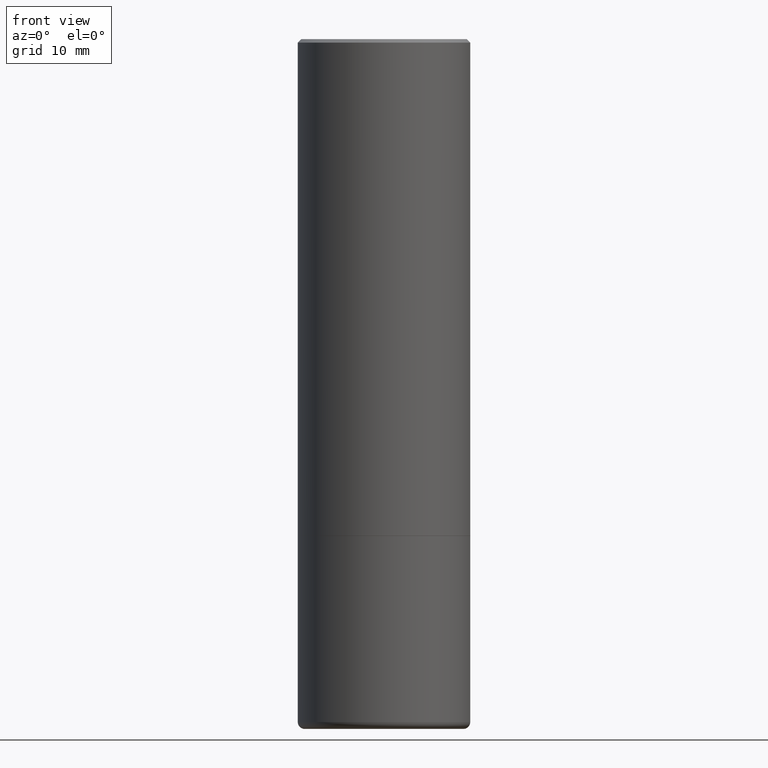
[diagram: clean part render]
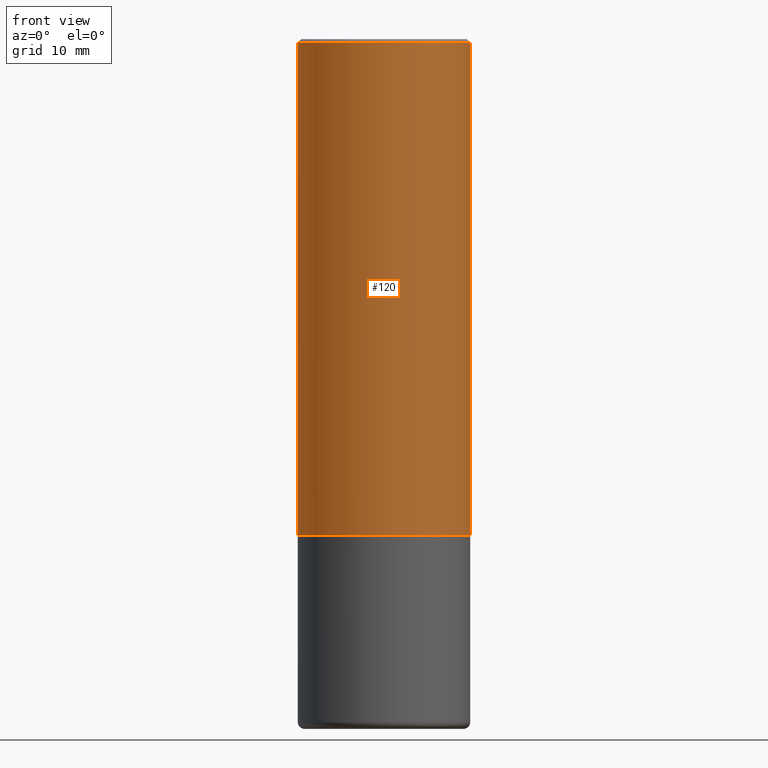
[diagram: same view with one face highlighted and labeled with its STEP entity id]
A machine part, front view. The second image highlights one B-rep face of the part: STEP entity #120.
In plain terms, the highlighted cylindrical surface (partial cylindrical patch) has radius 12.5006 mm, axis along (-0, 0, 1).
Its self-contained STEP definition (entity closure, byte-faithful):
#4 = EDGE_LOOP ( 'NONE', ( #301, #158, #31, #171 ) ) ;
#31 = ORIENTED_EDGE ( 'NONE', *, *, #246, .T. ) ;
#46 = DIRECTION ( 'NONE',  ( 1.000000000000000000, -6.982962677686265922E-15, 4.876176775795935793E-29 ) ) ;
#49 = EDGE_CURVE ( 'NONE', #362, #149, #179, .T. ) ;
#52 = DIRECTION ( 'NONE',  ( -2.445468806185136877E-29, 3.491481338843145188E-15, 1.000000000000000000 ) ) ;
#73 = CIRCLE ( 'NONE', #102, 0.4921499999999999764 ) ;
#77 = DIRECTION ( 'NONE',  ( -2.445468806185136877E-29, 3.491481338843145188E-15, 1.000000000000000000 ) ) ;
#94 = EDGE_CURVE ( 'NONE', #362, #298, #402, .T. ) ;
#95 = DIRECTION ( 'NONE',  ( 1.000000000000000000, -6.982962677686265922E-15, 0.000000000000000000 ) ) ;
#102 = AXIS2_PLACEMENT_3D ( 'NONE', #256, #217, #418 ) ;
#115 = DIRECTION ( 'NONE',  ( -2.445468806185136597E-29, 3.491481338843145583E-15, 1.000000000000000000 ) ) ;
#120 = ADVANCED_FACE ( 'NONE', ( #240 ), #347, .T. ) ;
#137 = AXIS2_PLACEMENT_3D ( 'NONE', #237, #366, #95 ) ;
#149 = VERTEX_POINT ( 'NONE', #369 ) ;
#158 = ORIENTED_EDGE ( 'NONE', *, *, #49, .T. ) ;
#160 = VECTOR ( 'NONE', #77, 39.37007874015748143 ) ;
#171 = ORIENTED_EDGE ( 'NONE', *, *, #321, .F. ) ;
#179 = CIRCLE ( 'NONE', #137, 0.4921500000000003094 ) ;
#189 = CARTESIAN_POINT ( 'NONE',  ( -0.4921500000000003094, -1.484709500218062761E-15, -2.833600000000000119 ) ) ;
#209 = CARTESIAN_POINT ( 'NONE',  ( -0.4921500000000000874, 3.496936074043333686E-15, -2.420853904668952350E-29 ) ) ;
#212 = VECTOR ( 'NONE', #52, 39.37007874015748143 ) ;
#217 = DIRECTION ( 'NONE',  ( -2.445468806185136597E-29, 3.491481338843145583E-15, 1.000000000000000000 ) ) ;
#237 = CARTESIAN_POINT ( 'NONE',  ( 6.929480409206204157E-29, -9.893461521745937878E-15, -2.833600000000000119 ) ) ;
#240 = FACE_OUTER_BOUND ( 'NONE', #4, .T. ) ;
#246 = EDGE_CURVE ( 'NONE', #149, #348, #373, .T. ) ;
#256 = CARTESIAN_POINT ( 'NONE',  ( 4.890937612370299433E-31, -6.982962677686328587E-17, -0.02000000000000010797 ) ) ;
#298 = VERTEX_POINT ( 'NONE', #320 ) ;
#301 = ORIENTED_EDGE ( 'NONE', *, *, #94, .F. ) ;
#315 = CARTESIAN_POINT ( 'NONE',  ( 0.4921499999999999764, -3.446223716380122349E-15, -0.02000000000000010797 ) ) ;
#320 = CARTESIAN_POINT ( 'NONE',  ( -0.4921499999999999764, 3.366835455046432478E-15, -0.02000000000000010797 ) ) ;
#321 = EDGE_CURVE ( 'NONE', #298, #348, #73, .T. ) ;
#347 = CYLINDRICAL_SURFACE ( 'NONE', #380, 0.4921500000000000874 ) ;
#348 = VERTEX_POINT ( 'NONE', #315 ) ;
#362 = VERTEX_POINT ( 'NONE', #189 ) ;
#366 = DIRECTION ( 'NONE',  ( -2.445468806185136597E-29, 3.491481338843145583E-15, 1.000000000000000000 ) ) ;
#369 = CARTESIAN_POINT ( 'NONE',  ( 0.4921500000000003094, -1.333012660356923523E-14, -2.833600000000000119 ) ) ;
#372 = CARTESIAN_POINT ( 'NONE',  ( 0.4921500000000000874, -3.436665081823296565E-15, 2.399810400207970163E-29 ) ) ;
#373 = LINE ( 'NONE', #372, #160 ) ;
#380 = AXIS2_PLACEMENT_3D ( 'NONE', #407, #115, #46 ) ;
#402 = LINE ( 'NONE', #209, #212 ) ;
#407 = CARTESIAN_POINT ( 'NONE',  ( 0.000000000000000000, 0.000000000000000000, 0.000000000000000000 ) ) ;
#418 = DIRECTION ( 'NONE',  ( 1.000000000000000000, -6.982962677686265922E-15, 0.000000000000000000 ) ) ;